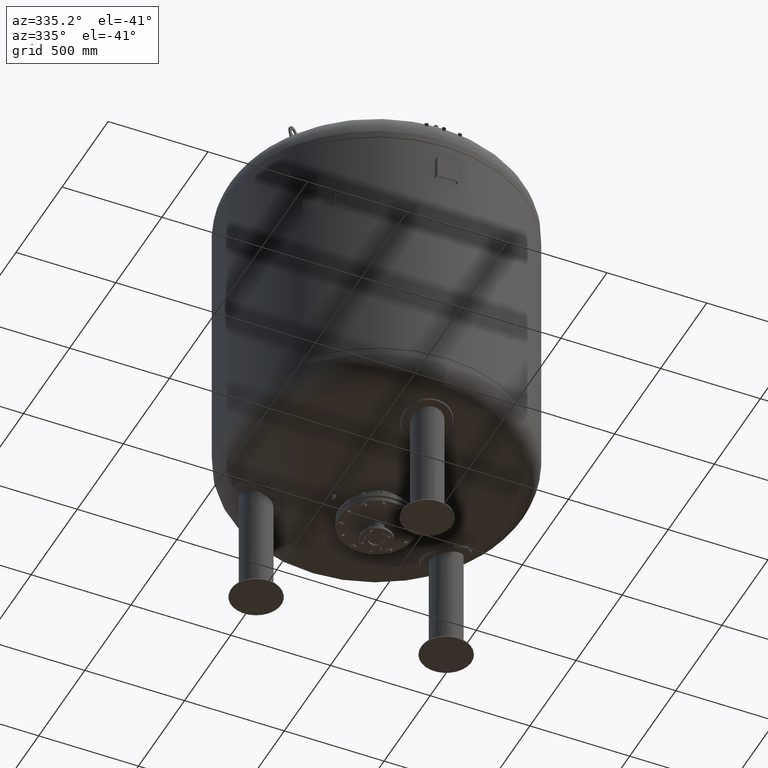
[diagram: clean part render]
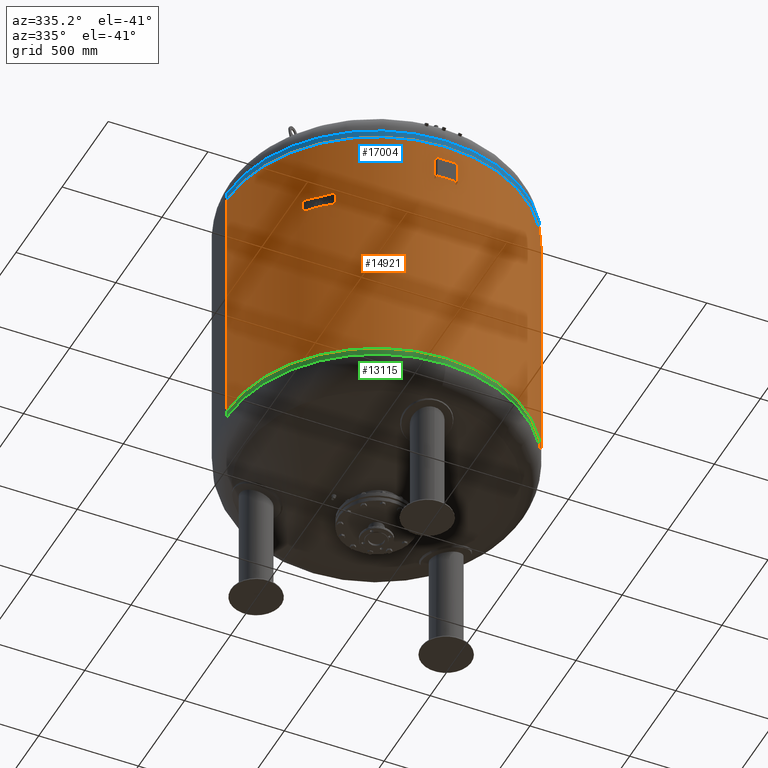
[diagram: same view with three faces highlighted in distinct colors, each labeled with its STEP entity id]
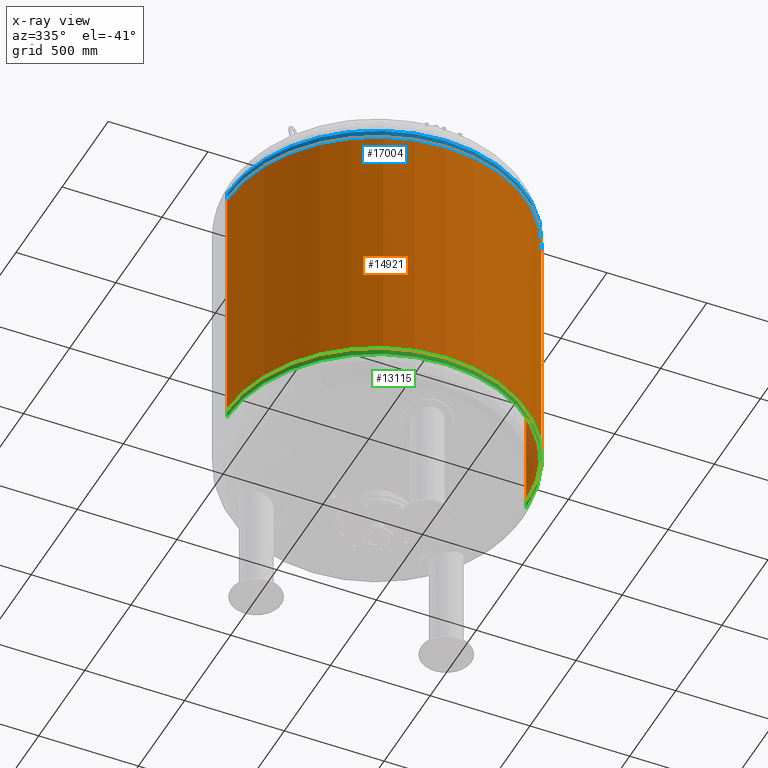
[diagram: x-ray of the same camera — body ghosted, the three highlighted faces saturated]
A machine part, auxiliary view with three faces highlighted in distinct colors.
The next image is the same camera in x-ray (body ghosted, the three faces saturated) — at least one of them is partly hidden behind the body in this view.
Their STEP definitions:

[orange] entity #14921 — the highlighted cylindrical surface (partial cylindrical patch) has radius 750 mm, axis along (0, 0, 1).
#14880=CARTESIAN_POINT('',(9.041626E-015,0.0,1781.0));
#14881=DIRECTION('',(2.670074E-017,0.0,1.0));
#14882=DIRECTION('',(1.0,0.0,0.0));
#14883=AXIS2_PLACEMENT_3D('',#14880,#14881,#14882);
#14884=CYLINDRICAL_SURFACE('',#14883,750.000000000000450);
#14885=CARTESIAN_POINT('',(750.000000000000570,0.0,2092.0));
#14886=VERTEX_POINT('',#14885);
#14887=CARTESIAN_POINT('',(749.999999999999890,0.0,821.999999999999770));
#14888=VERTEX_POINT('',#14887);
#14889=CARTESIAN_POINT('',(750.000000000000570,0.0,2092.0));
#14890=DIRECTION('',(0.0,0.0,-1.0));
#14891=VECTOR('',#14890,1270.000000000000200);
#14892=LINE('',#14889,#14891);
#14893=EDGE_CURVE('',#14886,#14888,#14892,.T.);
#14894=ORIENTED_EDGE('',*,*,#14893,.F.);
#14895=CARTESIAN_POINT('',(-750.000000000000450,-9.184548E-014,2092.0));
#14896=VERTEX_POINT('',#14895);
#14897=CARTESIAN_POINT('',(1.598721E-014,0.0,2092.0));
#14898=DIRECTION('',(0.0,0.0,1.0));
#14899=DIRECTION('',(1.0,0.0,0.0));
#14900=AXIS2_PLACEMENT_3D('',#14897,#14898,#14899);
#14901=CIRCLE('',#14900,750.000000000000570);
#14902=EDGE_CURVE('',#14896,#14886,#14901,.T.);
#14903=ORIENTED_EDGE('',*,*,#14902,.F.);
#14904=CARTESIAN_POINT('',(-749.999999999999890,-9.184548E-014,821.999999999999770));
#14905=VERTEX_POINT('',#14904);
#14906=CARTESIAN_POINT('',(-750.000000000000450,-9.184548E-014,2092.0));
#14907=DIRECTION('',(0.0,0.0,-1.0));
#14908=VECTOR('',#14907,1270.000000000000200);
#14909=LINE('',#14906,#14908);
#14910=EDGE_CURVE('',#14896,#14905,#14909,.T.);
#14911=ORIENTED_EDGE('',*,*,#14910,.T.);
#14912=CARTESIAN_POINT('',(-1.660786E-014,0.0,821.999999999999770));
#14913=DIRECTION('',(0.0,0.0,1.0));
#14914=DIRECTION('',(1.0,0.0,0.0));
#14915=AXIS2_PLACEMENT_3D('',#14912,#14913,#14914);
#14916=CIRCLE('',#14915,749.999999999999890);
#14917=EDGE_CURVE('',#14905,#14888,#14916,.T.);
#14918=ORIENTED_EDGE('',*,*,#14917,.T.);
#14919=EDGE_LOOP('',(#14894,#14903,#14911,#14918));
#14920=FACE_OUTER_BOUND('',#14919,.T.);
#14921=ADVANCED_FACE('',(#14920),#14884,.T.);

[blue] entity #17004 — the highlighted cylindrical surface (partial cylindrical patch) has radius 750 mm, axis along (0, -0, -1).
#15981=CARTESIAN_POINT('',(750.0,-6.062002E-014,2095.0));
#15982=VERTEX_POINT('',#15981);
#15983=CARTESIAN_POINT('',(750.0,-5.423428E-014,2129.762332584101800));
#15984=VERTEX_POINT('',#15983);
#15985=CARTESIAN_POINT('',(750.0,-6.062002E-014,2095.0));
#15986=DIRECTION('',(0.0,0.0,1.0));
#15987=VECTOR('',#15986,34.762332584101841);
#15988=LINE('',#15985,#15987);
#15989=EDGE_CURVE('',#15982,#15984,#15988,.T.);
#15991=CARTESIAN_POINT('',(-750.0,3.122546E-014,2095.0));
#15992=VERTEX_POINT('',#15991);
#16000=CARTESIAN_POINT('',(-750.0,3.761120E-014,2129.762332584101800));
#16001=VERTEX_POINT('',#16000);
#16002=CARTESIAN_POINT('',(-750.0,3.122546E-014,2095.0));
#16003=DIRECTION('',(0.0,0.0,1.0));
#16004=VECTOR('',#16003,34.762332584101841);
#16005=LINE('',#16002,#16004);
#16006=EDGE_CURVE('',#15992,#16001,#16005,.T.);
#16137=CARTESIAN_POINT('',(3.489809E-014,-750.0,2129.762332584101800));
#16138=VERTEX_POINT('',#16137);
#16146=CARTESIAN_POINT('',(1.459986E-014,-5.423428E-014,2129.762332584101800));
#16147=DIRECTION('',(0.0,0.0,-1.0));
#16148=DIRECTION('',(1.0,0.0,0.0));
#16149=AXIS2_PLACEMENT_3D('',#16146,#16147,#16148);
#16150=CIRCLE('',#16149,750.0);
#16151=EDGE_CURVE('',#15984,#16138,#16150,.T.);
#16396=CARTESIAN_POINT('',(1.459986E-014,-5.423428E-014,2129.762332584101800));
#16397=DIRECTION('',(0.0,0.0,-1.0));
#16398=DIRECTION('',(1.0,0.0,0.0));
#16399=AXIS2_PLACEMENT_3D('',#16396,#16397,#16398);
#16400=CIRCLE('',#16399,750.0);
#16401=EDGE_CURVE('',#16138,#16001,#16400,.T.);
#16986=CARTESIAN_POINT('',(1.545938E-014,-5.742715E-014,2112.381166292050700));
#16987=DIRECTION('',(4.945121E-017,-1.836970E-016,-1.0));
#16988=DIRECTION('',(1.0,0.0,0.0));
#16989=AXIS2_PLACEMENT_3D('',#16986,#16987,#16988);
#16990=CYLINDRICAL_SURFACE('',#16989,750.0);
#16991=ORIENTED_EDGE('',*,*,#15989,.T.);
#16992=ORIENTED_EDGE('',*,*,#16151,.T.);
#16993=ORIENTED_EDGE('',*,*,#16401,.T.);
#16994=ORIENTED_EDGE('',*,*,#16006,.F.);
#16995=CARTESIAN_POINT('',(1.631890E-014,-6.062002E-014,2095.0));
#16996=DIRECTION('',(0.0,0.0,-1.0));
#16997=DIRECTION('',(1.0,0.0,0.0));
#16998=AXIS2_PLACEMENT_3D('',#16995,#16996,#16997);
#16999=CIRCLE('',#16998,750.0);
#17000=EDGE_CURVE('',#15982,#15992,#16999,.T.);
#17001=ORIENTED_EDGE('',*,*,#17000,.F.);
#17002=EDGE_LOOP('',(#16991,#16992,#16993,#16994,#17001));
#17003=FACE_OUTER_BOUND('',#17002,.T.);
#17004=ADVANCED_FACE('',(#17003),#16990,.T.);

[green] entity #13115 — the highlighted cylindrical surface (partial cylindrical patch) has radius 750 mm, axis along (-0, -0, 1).
#12923=CARTESIAN_POINT('',(-750.0,-6.062002E-014,818.999999999999890));
#12924=VERTEX_POINT('',#12923);
#12925=CARTESIAN_POINT('',(-750.0,-5.423428E-014,784.237667415897930));
#12926=VERTEX_POINT('',#12925);
#12927=CARTESIAN_POINT('',(-750.0,-6.062002E-014,818.999999999999890));
#12928=DIRECTION('',(0.0,0.0,-1.0));
#12929=VECTOR('',#12928,34.762332584101955);
#12930=LINE('',#12927,#12929);
#12931=EDGE_CURVE('',#12924,#12926,#12930,.T.);
#12933=CARTESIAN_POINT('',(750.0,3.122546E-014,819.000000000000110));
#12934=VERTEX_POINT('',#12933);
#12942=CARTESIAN_POINT('',(750.0,3.761120E-014,784.237667415898160));
#12943=VERTEX_POINT('',#12942);
#12944=CARTESIAN_POINT('',(750.0,3.122546E-014,819.000000000000110));
#12945=DIRECTION('',(0.0,0.0,-1.0));
#12946=VECTOR('',#12945,34.762332584101955);
#12947=LINE('',#12944,#12946);
#12948=EDGE_CURVE('',#12934,#12943,#12947,.T.);
#12974=CARTESIAN_POINT('',(-7.105427E-014,-750.0,784.237667415898040));
#12975=VERTEX_POINT('',#12974);
#12985=CARTESIAN_POINT('',(-5.075605E-014,-5.423428E-014,784.237667415898160));
#12986=DIRECTION('',(0.0,0.0,1.0));
#12987=DIRECTION('',(-1.0,0.0,0.0));
#12988=AXIS2_PLACEMENT_3D('',#12985,#12986,#12987);
#12989=CIRCLE('',#12988,750.0);
#12990=EDGE_CURVE('',#12926,#12975,#12989,.T.);
#13087=CARTESIAN_POINT('',(-5.075605E-014,-5.423428E-014,784.237667415898160));
#13088=DIRECTION('',(0.0,0.0,1.0));
#13089=DIRECTION('',(-1.0,0.0,0.0));
#13090=AXIS2_PLACEMENT_3D('',#13087,#13088,#13089);
#13091=CIRCLE('',#13090,750.0);
#13092=EDGE_CURVE('',#12975,#12943,#13091,.T.);
#13097=CARTESIAN_POINT('',(-5.374415E-014,-5.742715E-014,801.618833707949080));
#13098=DIRECTION('',(-1.719159E-016,-1.836970E-016,1.0));
#13099=DIRECTION('',(-1.0,0.0,0.0));
#13100=AXIS2_PLACEMENT_3D('',#13097,#13098,#13099);
#13101=CYLINDRICAL_SURFACE('',#13100,750.0);
#13102=ORIENTED_EDGE('',*,*,#12931,.T.);
#13103=ORIENTED_EDGE('',*,*,#12990,.T.);
#13104=ORIENTED_EDGE('',*,*,#13092,.T.);
#13105=ORIENTED_EDGE('',*,*,#12948,.F.);
#13106=CARTESIAN_POINT('',(-5.673224E-014,-6.062002E-014,819.0));
#13107=DIRECTION('',(0.0,0.0,1.0));
#13108=DIRECTION('',(-1.0,0.0,0.0));
#13109=AXIS2_PLACEMENT_3D('',#13106,#13107,#13108);
#13110=CIRCLE('',#13109,750.0);
#13111=EDGE_CURVE('',#12924,#12934,#13110,.T.);
#13112=ORIENTED_EDGE('',*,*,#13111,.F.);
#13113=EDGE_LOOP('',(#13102,#13103,#13104,#13105,#13112));
#13114=FACE_OUTER_BOUND('',#13113,.T.);
#13115=ADVANCED_FACE('',(#13114),#13101,.T.);